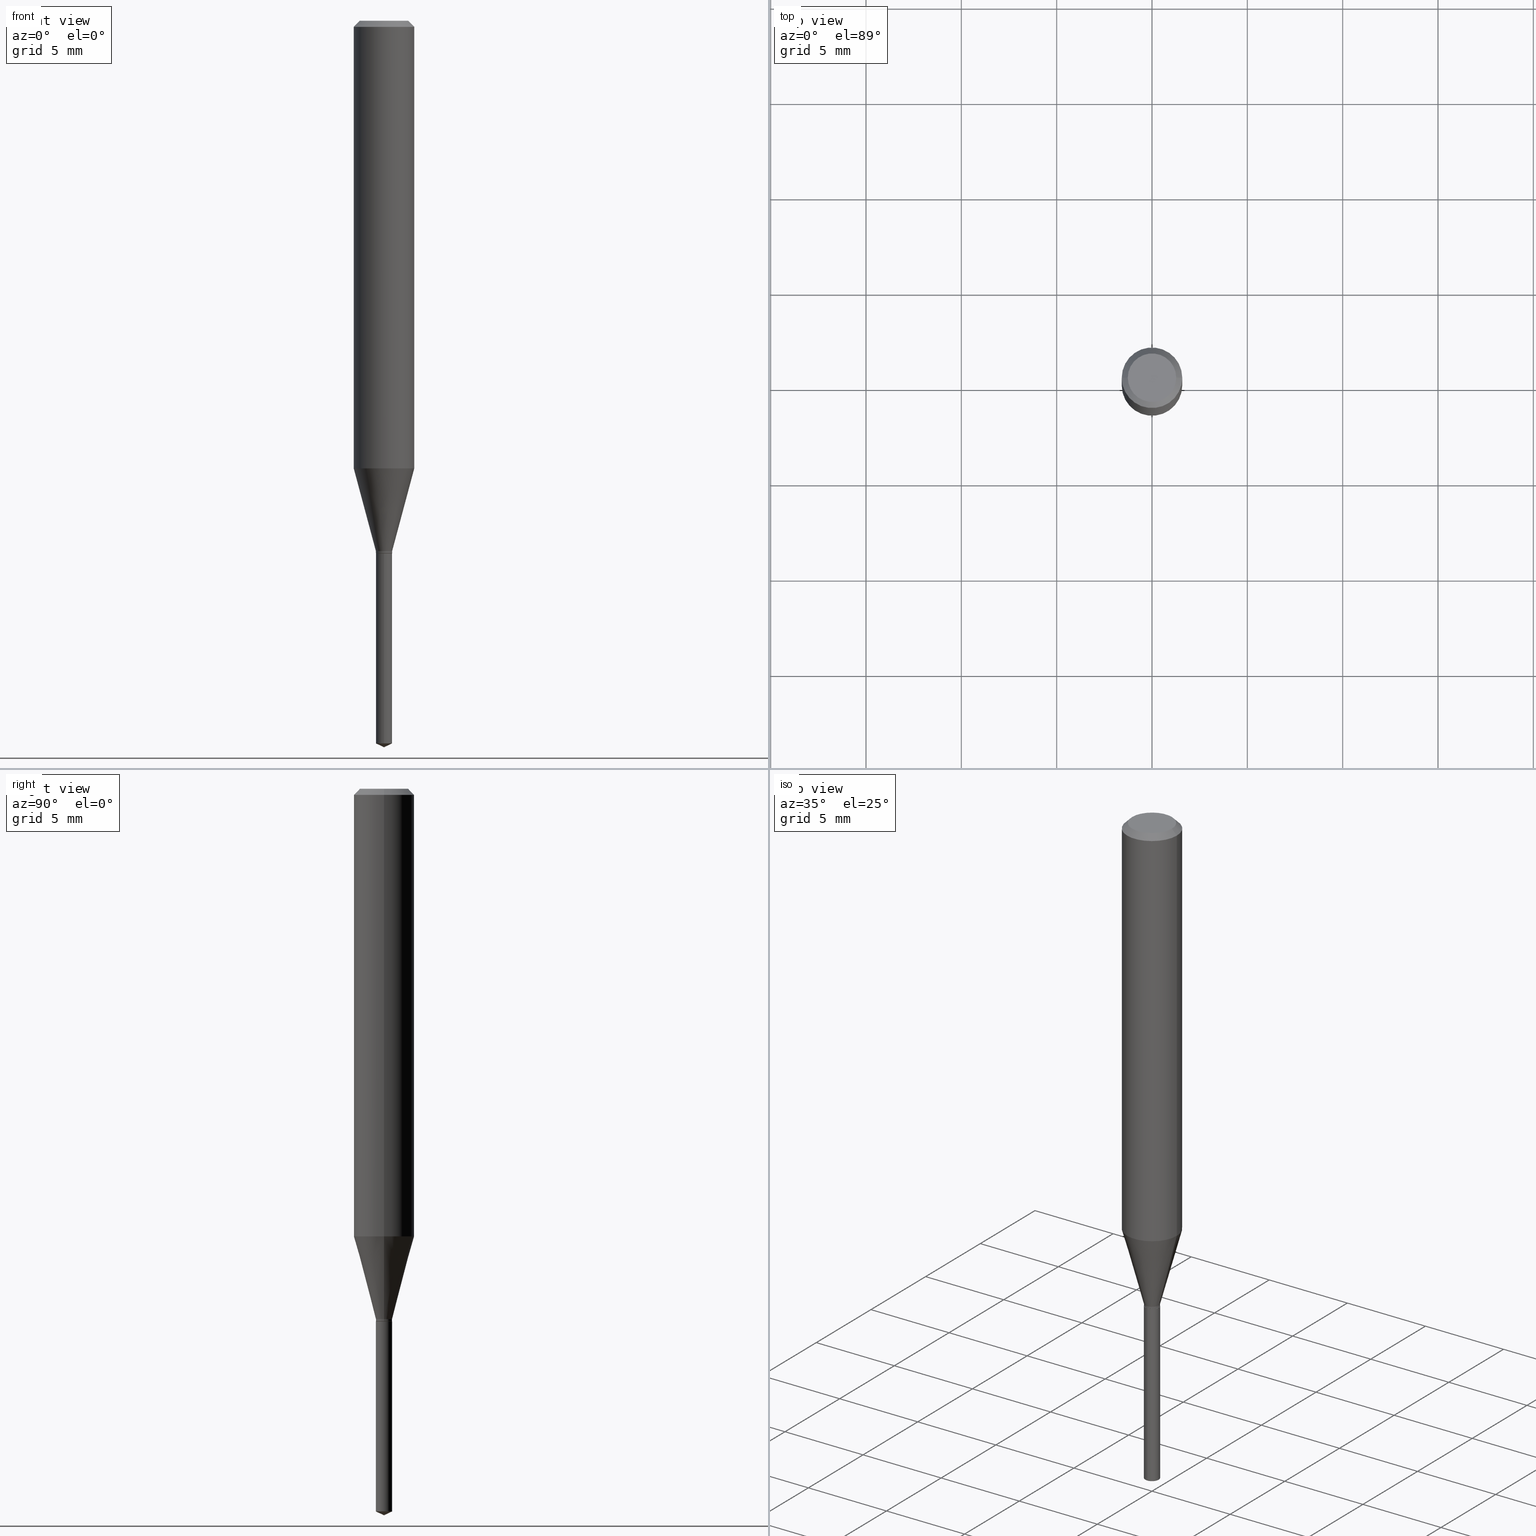
[diagram: canonical four-view strip — front | top / right | iso, engineering-drawing reading convention]
A machine part, canonical four-view strip (front | top / right | iso — engineering-drawing reading convention). The complete STEP part file that produces these views, byte-faithful:
ISO-10303-21;
HEADER;
FILE_DESCRIPTION (( 'STEP AP203' ),
    '1' );
FILE_NAME ('07300.STEP',
    '2024-04-23T20:17:56',
    ( '' ),
    ( '' ),
    'SwSTEP 2.0',
    'SolidWorks 2023',
    '' );
FILE_SCHEMA (( 'CONFIG_CONTROL_DESIGN' ));
ENDSEC;

DATA;
#1 = VERTEX_POINT ( 'NONE', #352 ) ;
#2 = CARTESIAN_POINT ( 'NONE',  ( 0.01674999999999999406, -1.169646248512449299E-16, 8.167596099458190491E-31 ) ) ;
#3 = ORIENTED_EDGE ( 'NONE', *, *, #4, .F. ) ;
#4 = EDGE_CURVE ( 'NONE', #376, #220, #438, .T. ) ;
#5 = CARTESIAN_POINT ( 'NONE',  ( 3.668099535622682715E-29, -5.237370474839449507E-15, -1.500000000000000222 ) ) ;
#6 = ORIENTED_EDGE ( 'NONE', *, *, #448, .T. ) ;
#7 = CYLINDRICAL_SURFACE ( 'NONE', #84, 0.01674999999999999406 ) ;
#8 = CIRCLE ( 'NONE', #423, 0.01674999999999999753 ) ;
#9 = ORIENTED_EDGE ( 'NONE', *, *, #229, .F. ) ;
#10 = CC_DESIGN_APPROVAL ( #482, ( #187 ) ) ;
#11 = CONICAL_SURFACE ( 'NONE', #296, 84.42940631927572781, 1.134464013796322224 ) ;
#12 = CARTESIAN_POINT ( 'NONE',  ( 0.04999999999999999584, -4.077247707424184212E-16, -1.592040838888913461E-18 ) ) ;
#13 = ORIENTED_EDGE ( 'NONE', *, *, #340, .T. ) ;
#14 = CARTESIAN_POINT ( 'NONE',  ( 1.190159082398436835E-16, 0.01674999999999616032, -1.100000000000000089 ) ) ;
#15 = CYLINDRICAL_SURFACE ( 'NONE', #336, 0.06250000000000005551 ) ;
#16 = PLANE ( 'NONE',  #282 ) ;
#17 = CARTESIAN_POINT ( 'NONE',  ( 0.000000000000000000, 0.000000000000000000, 0.000000000000000000 ) ) ;
#18 = CIRCLE ( 'NONE', #490, 0.01675000000000000447 ) ;
#19 = DIRECTION ( 'NONE',  ( -2.445468806185136597E-29, 3.491481338843145583E-15, 1.000000000000000000 ) ) ;
#20 = CARTESIAN_POINT ( 'NONE',  ( -0.01625000000000000402, -3.725166278166443916E-15, -1.100000000000000089 ) ) ;
#21 = ADVANCED_FACE ( 'NONE', ( #207 ), #135, .T. ) ;
#22 = PERSON_AND_ORGANIZATION ( #272, #484 ) ;
#23 = DIRECTION ( 'NONE',  ( -6.982962677686265922E-15, -1.000000000000000000, 0.000000000000000000 ) ) ;
#24 = DIRECTION ( 'NONE',  ( 0.7071067811865173747, -2.468850131081940727E-15, 0.7071067811865776598 ) ) ;
#25 = AXIS2_PLACEMENT_3D ( 'NONE', #52, #245, #92 ) ;
#26 = VECTOR ( 'NONE', #275, 39.37007874015748854 ) ;
#27 = CC_DESIGN_APPROVAL ( #121, ( #266 ) ) ;
#28 = EDGE_CURVE ( 'NONE', #342, #111, #354, .T. ) ;
#29 = FACE_OUTER_BOUND ( 'NONE', #480, .T. ) ;
#30 = ORIENTED_EDGE ( 'NONE', *, *, #472, .F. ) ;
#31 = PERSON_AND_ORGANIZATION_ROLE ( 'classification_officer' ) ;
#32 = CARTESIAN_POINT ( 'NONE',  ( 0.01674999999999999406, -3.940136690884488960E-15, -1.094999999999999973 ) ) ;
#33 = ORIENTED_EDGE ( 'NONE', *, *, #171, .T. ) ;
#34 = ORIENTED_EDGE ( 'NONE', *, *, #356, .T. ) ;
#35 = EDGE_LOOP ( 'NONE', ( #429, #194, #30, #41 ) ) ;
#36 = ADVANCED_FACE ( 'NONE', ( #467 ), #162, .F. ) ;
#37 = CARTESIAN_POINT ( 'NONE',  ( -0.01674999999999999406, 1.190159082398167389E-16, -8.239216276176963934E-31 ) ) ;
#38 = ORIENTED_EDGE ( 'NONE', *, *, #261, .T. ) ;
#39 = DIRECTION ( 'NONE',  ( -2.445399690415121530E-29, 3.491580316559632610E-15, 1.000000000000000000 ) ) ;
#40 = ADVANCED_FACE ( 'NONE', ( #357 ), #328, .T. ) ;
#41 = ORIENTED_EDGE ( 'NONE', *, *, #128, .F. ) ;
#42 = DIRECTION ( 'NONE',  ( -2.445468806185136877E-29, 3.491481338843145188E-15, 1.000000000000000000 ) ) ;
#43 = ORIENTED_EDGE ( 'NONE', *, *, #270, .F. ) ;
#44 = CARTESIAN_POINT ( 'NONE',  ( -0.06250000000000005551, 4.440892098500630106E-16, -3.074334431409318916E-30 ) ) ;
#45 = EDGE_LOOP ( 'NONE', ( #456, #228, #63, #224 ) ) ;
#46 = DIRECTION ( 'NONE',  ( -2.445468806185136597E-29, 3.491481338843145583E-15, 1.000000000000000000 ) ) ;
#47 = AXIS2_PLACEMENT_3D ( 'NONE', #156, #463, #433 ) ;
#48 = VERTEX_POINT ( 'NONE', #58 ) ;
#49 = LINE ( 'NONE', #14, #406 ) ;
#50 = LINE ( 'NONE', #280, #239 ) ;
#51 = CARTESIAN_POINT ( 'NONE',  ( 2.688792952400557567E-29, -3.838883732058038598E-15, -1.099499999999999922 ) ) ;
#52 = CARTESIAN_POINT ( 'NONE',  ( 2.677788342772724596E-29, -3.823172066033244277E-15, -1.094999999999999973 ) ) ;
#53 = DIRECTION ( 'NONE',  ( 1.000000000000000000, -6.982962677686266711E-15, 0.000000000000000000 ) ) ;
#54 = VECTOR ( 'NONE', #223, 39.37007874015748854 ) ;
#55 = CLOSED_SHELL ( 'NONE', ( #326, #97, #373, #82, #36 ) ) ;
#56 = APPROVAL_STATUS ( 'not_yet_approved' ) ;
#57 = DIRECTION ( 'NONE',  ( 2.445399690415121250E-29, -3.491580316559632610E-15, -1.000000000000000000 ) ) ;
#58 = CARTESIAN_POINT ( 'NONE',  ( -0.06250000000000012490, -2.782942708109644843E-15, -0.9242586755537238741 ) ) ;
#59 = EDGE_CURVE ( 'NONE', #158, #379, #267, .T. ) ;
#60 = CYLINDRICAL_SURFACE ( 'NONE', #292, 0.01675000000000000447 ) ;
#61 = AXIS2_PLACEMENT_3D ( 'NONE', #313, #87, #235 ) ;
#62 = DIRECTION ( 'NONE',  ( 1.000000000000000000, -6.982962677686262766E-15, 0.000000000000000000 ) ) ;
#63 = ORIENTED_EDGE ( 'NONE', *, *, #248, .T. ) ;
#64 = PERSON_AND_ORGANIZATION_ROLE ( 'design_supplier' ) ;
#65 = DIRECTION ( 'NONE',  ( 1.000000000000000000, -6.982962677686264344E-15, 0.000000000000000000 ) ) ;
#66 = EDGE_LOOP ( 'NONE', ( #444, #306, #465, #427 ) ) ;
#67 = CLOSED_SHELL ( 'NONE', ( #21, #241, #89, #210, #439, #457, #378, #286, #40, #487, #179, #363 ) ) ;
#68 = CONICAL_SURFACE ( 'NONE', #157, 0.01674999999999999406, 0.2617993877991499629 ) ;
#69 = PRODUCT ( '07300', '07300', '', ( #371 ) ) ;
#70 = EDGE_CURVE ( 'NONE', #113, #376, #140, .T. ) ;
#71 = DIRECTION ( 'NONE',  ( 1.000000000000000000, -6.982962677686261189E-15, 0.000000000000000000 ) ) ;
#72 = ORIENTED_EDGE ( 'NONE', *, *, #28, .F. ) ;
#73 = CYLINDRICAL_SURFACE ( 'NONE', #148, 0.06250000000000005551 ) ;
#74 = CC_DESIGN_DATE_AND_TIME_ASSIGNMENT ( #435, #287, ( #382 ) ) ;
#75 = AXIS2_PLACEMENT_3D ( 'NONE', #404, #78, #269 ) ;
#76 = LOCAL_TIME ( 16, 17, 56.00000000000000000, #279 ) ;
#77 = EDGE_LOOP ( 'NONE', ( #425, #258, #348, #311 ) ) ;
#78 = DIRECTION ( 'NONE',  ( -2.445468806185136597E-29, 3.491481338843145583E-15, 1.000000000000000000 ) ) ;
#79 = ORIENTED_EDGE ( 'NONE', *, *, #128, .T. ) ;
#80 = DIRECTION ( 'NONE',  ( 1.000000000000000000, -6.982962677686266711E-15, 4.876176775795936353E-29 ) ) ;
#81 = ORIENTED_EDGE ( 'NONE', *, *, #59, .F. ) ;
#82 = ADVANCED_FACE ( 'NONE', ( #203 ), #403, .T. ) ;
#83 = CARTESIAN_POINT ( 'NONE',  ( -9.260740279983036507E-28, 1.322265303911854087E-13, 37.87007874015748143 ) ) ;
#84 = AXIS2_PLACEMENT_3D ( 'NONE', #359, #458, #80 ) ;
#85 = DIRECTION ( 'NONE',  ( -6.982962677686265922E-15, -1.000000000000000000, 0.000000000000000000 ) ) ;
#86 = DIRECTION ( 'NONE',  ( -2.445468806185136597E-29, 3.491481338843145583E-15, 1.000000000000000000 ) ) ;
#87 = DIRECTION ( 'NONE',  ( -2.445399690415121530E-29, 3.491580316559632610E-15, 1.000000000000000000 ) ) ;
#88 = DIRECTION ( 'NONE',  ( 2.438088387897960049E-29, -3.491481338843145188E-15, -1.000000000000000000 ) ) ;
#89 = ADVANCED_FACE ( 'NONE', ( #399 ), #15, .T. ) ;
#90 = CARTESIAN_POINT ( 'NONE',  ( 3.056836007731440977E-31, -4.364351673553961068E-17, -0.01250000000000008223 ) ) ;
#91 = APPROVAL_DATE_TIME ( #475, #482 ) ;
#92 = DIRECTION ( 'NONE',  ( 1.000000000000000000, -6.982962677686262766E-15, 0.000000000000000000 ) ) ;
#93 = APPROVAL_PERSON_ORGANIZATION ( #249, #482, #409 ) ;
#94 = DATE_AND_TIME ( #246, #240 ) ;
#95 = APPLICATION_CONTEXT ( 'configuration controlled 3d designs of mechanical parts and assemblies' ) ;
#96 = CARTESIAN_POINT ( 'NONE',  ( -9.260740279983036507E-28, 1.322265303911854087E-13, 37.87007874015748143 ) ) ;
#97 = ADVANCED_FACE ( 'NONE', ( #242 ), #11, .T. ) ;
#98 = DIRECTION ( 'NONE',  ( -2.445468806185136597E-29, 3.491481338843145583E-15, 1.000000000000000000 ) ) ;
#99 = CC_DESIGN_PERSON_AND_ORGANIZATION_ASSIGNMENT ( #216, #64, ( #187 ) ) ;
#100 = PERSON_AND_ORGANIZATION_ROLE ( 'design_owner' ) ;
#101 = DIRECTION ( 'NONE',  ( -1.000000000000000000, 6.982962677686266711E-15, 0.000000000000000000 ) ) ;
#102 = CIRCLE ( 'NONE', #446, 0.04999999999999999584 ) ;
#103 = CALENDAR_DATE ( 2024, 23, 4 ) ;
#104 = DIRECTION ( 'NONE',  ( 1.000000000000000000, -6.982962677686265922E-15, 4.876176775795935793E-29 ) ) ;
#105 = EDGE_CURVE ( 'NONE', #289, #342, #393, .T. ) ;
#106 = ORIENTED_EDGE ( 'NONE', *, *, #70, .T. ) ;
#107 = CONICAL_SURFACE ( 'NONE', #173, 84.42940631927572781, 1.134464013796322224 ) ;
#108 = ORIENTED_EDGE ( 'NONE', *, *, #337, .T. ) ;
#109 = EDGE_CURVE ( 'NONE', #386, #220, #205, .T. ) ;
#110 = DIRECTION ( 'NONE',  ( -2.445468806185136597E-29, 3.491481338843145583E-15, 1.000000000000000000 ) ) ;
#111 = VERTEX_POINT ( 'NONE', #322 ) ;
#112 = CARTESIAN_POINT ( 'NONE',  ( 3.056836007731440977E-31, -4.364351673553961068E-17, -0.01250000000000008223 ) ) ;
#113 = VERTEX_POINT ( 'NONE', #327 ) ;
#114 =( CONVERSION_BASED_UNIT ( 'INCH', #305 ) LENGTH_UNIT ( ) NAMED_UNIT ( #321 ) );
#115 = AXIS2_PLACEMENT_3D ( 'NONE', #316, #422, #62 ) ;
#116 = VERTEX_POINT ( 'NONE', #211 ) ;
#117 = DIRECTION ( 'NONE',  ( 1.000000000000000000, -6.982962677686256455E-15, 0.000000000000000000 ) ) ;
#118 = EDGE_CURVE ( 'NONE', #116, #215, #147, .T. ) ;
#119 = ORIENTED_EDGE ( 'NONE', *, *, #448, .F. ) ;
#120 = DIRECTION ( 'NONE',  ( -2.445468806185136597E-29, 3.491481338843145583E-15, 1.000000000000000000 ) ) ;
#121 = APPROVAL ( #56, 'UNSPECIFIED' ) ;
#122 = ORIENTED_EDGE ( 'NONE', *, *, #155, .T. ) ;
#123 = LINE ( 'NONE', #193, #26 ) ;
#124 = CONICAL_SURFACE ( 'NONE', #449, 0.01674999999999999406, 0.2617993877991499629 ) ;
#125 = CIRCLE ( 'NONE', #197, 0.06250000000000012490 ) ;
#126 = DIRECTION ( 'NONE',  ( -2.445468806185136597E-29, 3.491481338843145583E-15, 1.000000000000000000 ) ) ;
#127 =( GEOMETRIC_REPRESENTATION_CONTEXT ( 3 ) GLOBAL_UNCERTAINTY_ASSIGNED_CONTEXT ( ( #218 ) ) GLOBAL_UNIT_ASSIGNED_CONTEXT ( ( #114, #177, #442 ) ) REPRESENTATION_CONTEXT ( 'NONE', 'WORKASPACE' ) );
#128 = EDGE_CURVE ( 'NONE', #289, #142, #50, .T. ) ;
#129 = FACE_OUTER_BOUND ( 'NONE', #146, .T. ) ;
#130 = DIRECTION ( 'NONE',  ( -0.7071067811865453523, 2.468850131082234184E-15, -0.7071067811865496822 ) ) ;
#131 = PERSON_AND_ORGANIZATION ( #272, #484 ) ;
#132 = DIRECTION ( 'NONE',  ( 1.000000000000000000, -6.982962677686267499E-15, 4.876176775795936353E-29 ) ) ;
#133 = CALENDAR_DATE ( 2024, 23, 4 ) ;
#134 = EDGE_CURVE ( 'NONE', #215, #116, #18, .T. ) ;
#135 = CONICAL_SURFACE ( 'NONE', #414, 0.01625000000000000402, 0.7853981633974056464 ) ;
#136 = DIRECTION ( 'NONE',  ( -2.445468806185136597E-29, 3.491481338843145583E-15, 1.000000000000000000 ) ) ;
#137 = CONICAL_SURFACE ( 'NONE', #47, 0.01625000000000000402, 0.7853981633974056464 ) ;
#138 = APPROVAL_PERSON_ORGANIZATION ( #175, #304, #170 ) ;
#139 = APPLICATION_PROTOCOL_DEFINITION ( 'international standard', 'config_control_design', 1994, #236 ) ;
#140 = LINE ( 'NONE', #209, #349 ) ;
#141 = LINE ( 'NONE', #372, #474 ) ;
#142 = VERTEX_POINT ( 'NONE', #233 ) ;
#143 = APPROVAL_DATE_TIME ( #329, #304 ) ;
#144 = FACE_OUTER_BOUND ( 'NONE', #419, .T. ) ;
#145 = VECTOR ( 'NONE', #479, 39.37007874015748143 ) ;
#146 = EDGE_LOOP ( 'NONE', ( #72, #6, #79, #43 ) ) ;
#147 = CIRCLE ( 'NONE', #232, 0.01675000000000000447 ) ;
#148 = AXIS2_PLACEMENT_3D ( 'NONE', #183, #368, #333 ) ;
#149 = CARTESIAN_POINT ( 'NONE',  ( 2.677788342772724596E-29, -3.823172066033244277E-15, -1.094999999999999973 ) ) ;
#150 = ORIENTED_EDGE ( 'NONE', *, *, #155, .F. ) ;
#151 = LINE ( 'NONE', #32, #54 ) ;
#152 = ORIENTED_EDGE ( 'NONE', *, *, #430, .F. ) ;
#153 = LINE ( 'NONE', #2, #375 ) ;
#154 = EDGE_LOOP ( 'NONE', ( #300, #260, #488, #108 ) ) ;
#155 = EDGE_CURVE ( 'NONE', #189, #1, #367, .T. ) ;
#156 = CARTESIAN_POINT ( 'NONE',  ( 2.690015686803650369E-29, -3.840629472727460101E-15, -1.100000000000000089 ) ) ;
#157 = AXIS2_PLACEMENT_3D ( 'NONE', #149, #186, #302 ) ;
#158 = VERTEX_POINT ( 'NONE', #165 ) ;
#159 = DIRECTION ( 'NONE',  ( -6.982962677686267499E-15, -1.000000000000000000, 3.520397390770395889E-15 ) ) ;
#160 = ORIENTED_EDGE ( 'NONE', *, *, #105, .F. ) ;
#161 = DIRECTION ( 'NONE',  ( -2.445399690415121810E-29, 3.491580316559632610E-15, 1.000000000000000000 ) ) ;
#162 = PLANE ( 'NONE',  #324 ) ;
#163 = DIRECTION ( 'NONE',  ( -1.000000000000000000, 6.982962677686265922E-15, -4.876176775795935793E-29 ) ) ;
#164 = AXIS2_PLACEMENT_3D ( 'NONE', #426, #46, #277 ) ;
#165 = CARTESIAN_POINT ( 'NONE',  ( 0.01674999999999999406, -3.940136690884488960E-15, -1.094999999999999973 ) ) ;
#166 = CALENDAR_DATE ( 2024, 23, 4 ) ;
#167 = DIRECTION ( 'NONE',  ( -2.445468806185136597E-29, 3.491481338843145583E-15, 1.000000000000000000 ) ) ;
#168 = APPROVAL_ROLE ( '' ) ;
#169 = DIRECTION ( 'NONE',  ( -2.445468806185136597E-29, 3.491481338843145583E-15, 1.000000000000000000 ) ) ;
#170 = APPROVAL_ROLE ( '' ) ;
#171 = EDGE_CURVE ( 'NONE', #379, #158, #250, .T. ) ;
#172 = CARTESIAN_POINT ( 'NONE',  ( 2.690015686803650369E-29, -3.840629472727460101E-15, -1.100000000000000089 ) ) ;
#173 = AXIS2_PLACEMENT_3D ( 'NONE', #83, #392, #159 ) ;
#174 = AXIS2_PLACEMENT_3D ( 'NONE', #172, #362, #23 ) ;
#175 = PERSON_AND_ORGANIZATION ( #272, #484 ) ;
#176 = CARTESIAN_POINT ( 'NONE',  ( 2.690015686803650369E-29, -3.840629472727460101E-15, -1.100000000000000089 ) ) ;
#177 =( NAMED_UNIT ( * ) PLANE_ANGLE_UNIT ( ) SI_UNIT ( $, .RADIAN. ) );
#178 = CARTESIAN_POINT ( 'NONE',  ( -1.169646248512180840E-16, -0.01675000000000384515, -1.100000000000000089 ) ) ;
#179 = ADVANCED_FACE ( 'NONE', ( #144 ), #259, .F. ) ;
#180 = ORIENTED_EDGE ( 'NONE', *, *, #261, .F. ) ;
#181 = AXIS2_PLACEMENT_3D ( 'NONE', #299, #288, #104 ) ;
#182 = EDGE_CURVE ( 'NONE', #1, #189, #185, .T. ) ;
#183 = CARTESIAN_POINT ( 'NONE',  ( 0.000000000000000000, 0.000000000000000000, 0.000000000000000000 ) ) ;
#184 = ORIENTED_EDGE ( 'NONE', *, *, #418, .T. ) ;
#185 = CIRCLE ( 'NONE', #307, 0.01675000000000000447 ) ;
#186 = DIRECTION ( 'NONE',  ( -2.445468806185136597E-29, 3.491481338843145583E-15, 1.000000000000000000 ) ) ;
#187 = PRODUCT_DEFINITION_FORMATION_WITH_SPECIFIED_SOURCE ( 'ANY', '', #69, .NOT_KNOWN. ) ;
#188 = PRODUCT_DEFINITION_SHAPE ( 'NONE', 'NONE',  #382 ) ;
#189 = VERTEX_POINT ( 'NONE', #262 ) ;
#190 = DIRECTION ( 'NONE',  ( -2.445468806185136877E-29, 3.491481338843145188E-15, 1.000000000000000000 ) ) ;
#191 = ORIENTED_EDGE ( 'NONE', *, *, #256, .F. ) ;
#192 = EDGE_CURVE ( 'NONE', #116, #1, #217, .T. ) ;
#193 = CARTESIAN_POINT ( 'NONE',  ( -0.01674999999999999406, -3.704156157793427982E-15, -1.094999999999999973 ) ) ;
#194 = ORIENTED_EDGE ( 'NONE', *, *, #28, .T. ) ;
#195 = AXIS2_PLACEMENT_3D ( 'NONE', #90, #469, #237 ) ;
#196 = CARTESIAN_POINT ( 'NONE',  ( 1.946643104841063088E-47, -2.779290439833033990E-33, -7.960204194457798443E-19 ) ) ;
#197 = AXIS2_PLACEMENT_3D ( 'NONE', #345, #110, #65 ) ;
#198 = APPROVAL_PERSON_ORGANIZATION ( #131, #121, #168 ) ;
#199 = VECTOR ( 'NONE', #436, 39.37007874015748143 ) ;
#200 = ORIENTED_EDGE ( 'NONE', *, *, #70, .F. ) ;
#201 = CARTESIAN_POINT ( 'NONE',  ( 0.06250000000000000000, -4.800786840909312308E-16, -0.01250000000000008223 ) ) ;
#202 = EDGE_CURVE ( 'NONE', #111, #379, #489, .T. ) ;
#203 = FACE_OUTER_BOUND ( 'NONE', #346, .T. ) ;
#204 = CARTESIAN_POINT ( 'NONE',  ( -0.04999999999999999584, 3.709698922520826725E-16, -1.592040838894077649E-18 ) ) ;
#205 = LINE ( 'NONE', #432, #366 ) ;
#206 = AXIS2_PLACEMENT_3D ( 'NONE', #361, #238, #332 ) ;
#207 = FACE_OUTER_BOUND ( 'NONE', #35, .T. ) ;
#208 = PERSON_AND_ORGANIZATION ( #272, #484 ) ;
#209 = CARTESIAN_POINT ( 'NONE',  ( 0.06250000000000005551, -4.364351673553921131E-16, 3.047610484872463023E-30 ) ) ;
#210 = ADVANCED_FACE ( 'NONE', ( #293 ), #68, .T. ) ;
#211 = CARTESIAN_POINT ( 'NONE',  ( -1.169646248512084451E-16, -0.01675000000000521211, -1.492189346725903976 ) ) ;
#212 = CARTESIAN_POINT ( 'NONE',  ( 0.06250000000000000000, -4.724246415962602840E-16, -0.01250000000000008223 ) ) ;
#213 = EDGE_CURVE ( 'NONE', #417, #376, #443, .T. ) ;
#214 = DIRECTION ( 'NONE',  ( 0.7071067811865453523, -7.319954787623248157E-15, -0.7071067811865496822 ) ) ;
#215 = VERTEX_POINT ( 'NONE', #343 ) ;
#216 = PERSON_AND_ORGANIZATION ( #272, #484 ) ;
#217 = LINE ( 'NONE', #178, #145 ) ;
#218 = UNCERTAINTY_MEASURE_WITH_UNIT (LENGTH_MEASURE( 1.000000000000000082E-05 ), #114, 'distance_accuracy_value', 'NONE');
#219 = MANIFOLD_SOLID_BREP ( 'Body-Move/Copy2[1]', #55 ) ;
#220 = VERTEX_POINT ( 'NONE', #331 ) ;
#221 = CARTESIAN_POINT ( 'NONE',  ( 3.056836007731440977E-31, -4.364351673553961068E-17, -0.01250000000000008223 ) ) ;
#222 = EDGE_LOOP ( 'NONE', ( #271, #374, #485, #335 ) ) ;
#223 = DIRECTION ( 'NONE',  ( 0.2588190451025212391, 1.565188264969622362E-15, 0.9659258262890679791 ) ) ;
#224 = ORIENTED_EDGE ( 'NONE', *, *, #171, .F. ) ;
#225 = CARTESIAN_POINT ( 'NONE',  ( -0.01625000000000000402, -3.722517050992332715E-15, -1.100000000000000089 ) ) ;
#226 = ORIENTED_EDGE ( 'NONE', *, *, #192, .T. ) ;
#227 = DIRECTION ( 'NONE',  ( 1.000000000000000000, -6.982962677686261189E-15, 0.000000000000000000 ) ) ;
#228 = ORIENTED_EDGE ( 'NONE', *, *, #270, .T. ) ;
#229 = EDGE_CURVE ( 'NONE', #297, #215, #255, .T. ) ;
#230 = CARTESIAN_POINT ( 'NONE',  ( 2.690015686803650369E-29, -3.840629472727460101E-15, -1.100000000000000089 ) ) ;
#231 = AXIS2_PLACEMENT_3D ( 'NONE', #466, #120, #347 ) ;
#232 = AXIS2_PLACEMENT_3D ( 'NONE', #394, #365, #470 ) ;
#233 = CARTESIAN_POINT ( 'NONE',  ( 0.01674999999999999753, -3.955848356909283281E-15, -1.099499999999999922 ) ) ;
#234 = FACE_OUTER_BOUND ( 'NONE', #45, .T. ) ;
#235 = DIRECTION ( 'NONE',  ( -6.982962677686265922E-15, -1.000000000000000000, 0.000000000000000000 ) ) ;
#236 = APPLICATION_CONTEXT ( 'configuration controlled 3d designs of mechanical parts and assemblies' ) ;
#237 = DIRECTION ( 'NONE',  ( -1.000000000000000000, 6.982962677686266711E-15, 0.000000000000000000 ) ) ;
#238 = DIRECTION ( 'NONE',  ( 0.000000000000000000, 0.000000000000000000, 1.000000000000000000 ) ) ;
#239 = VECTOR ( 'NONE', #24, 39.37007874015748143 ) ;
#240 = LOCAL_TIME ( 16, 17, 56.00000000000000000, #320 ) ;
#241 = ADVANCED_FACE ( 'NONE', ( #370 ), #298, .T. ) ;
#242 = FACE_OUTER_BOUND ( 'NONE', #264, .T. ) ;
#243 = AXIS2_PLACEMENT_3D ( 'NONE', #473, #136, #53 ) ;
#244 = APPROVAL_DATE_TIME ( #94, #121 ) ;
#245 = DIRECTION ( 'NONE',  ( -2.445468806185136597E-29, 3.491481338843145583E-15, 1.000000000000000000 ) ) ;
#246 = CALENDAR_DATE ( 2024, 23, 4 ) ;
#247 = DIRECTION ( 'NONE',  ( 1.000000000000000000, -6.982962677686266711E-15, 0.000000000000000000 ) ) ;
#248 = EDGE_CURVE ( 'NONE', #142, #158, #153, .T. ) ;
#249 = PERSON_AND_ORGANIZATION ( #272, #484 ) ;
#250 = CIRCLE ( 'NONE', #115, 0.01674999999999999406 ) ;
#251 = CARTESIAN_POINT ( 'NONE',  ( 2.688792952400557567E-29, -3.838883732058038598E-15, -1.099499999999999922 ) ) ;
#252 = ORIENTED_EDGE ( 'NONE', *, *, #182, .T. ) ;
#253 = PERSON_AND_ORGANIZATION_ROLE ( 'creator' ) ;
#254 = CC_DESIGN_PERSON_AND_ORGANIZATION_ASSIGNMENT ( #478, #253, ( #187 ) ) ;
#255 = LINE ( 'NONE', #481, #325 ) ;
#256 = EDGE_CURVE ( 'NONE', #48, #113, #125, .T. ) ;
#257 = CIRCLE ( 'NONE', #341, 0.06250000000000000000 ) ;
#258 = ORIENTED_EDGE ( 'NONE', *, *, #430, .T. ) ;
#259 = PLANE ( 'NONE',  #181 ) ;
#260 = ORIENTED_EDGE ( 'NONE', *, *, #464, .F. ) ;
#261 = EDGE_CURVE ( 'NONE', #297, #116, #141, .T. ) ;
#262 = CARTESIAN_POINT ( 'NONE',  ( 1.190159082398533470E-16, 0.01674999999999616379, -1.100000000000000089 ) ) ;
#263 = ADVANCED_BREP_SHAPE_REPRESENTATION ( '07300', ( #219, #380, #206 ), #127 ) ;
#264 = EDGE_LOOP ( 'NONE', ( #180, #424, #303 ) ) ;
#265 = AXIS2_PLACEMENT_3D ( 'NONE', #221, #411, #101 ) ;
#266 = SECURITY_CLASSIFICATION ( '', '', #405 ) ;
#267 = CIRCLE ( 'NONE', #25, 0.01674999999999999406 ) ;
#268 = ORIENTED_EDGE ( 'NONE', *, *, #202, .T. ) ;
#269 = DIRECTION ( 'NONE',  ( 1.000000000000000000, -6.982962677686265922E-15, 4.875957971899673662E-29 ) ) ;
#270 = EDGE_CURVE ( 'NONE', #111, #142, #8, .T. ) ;
#271 = ORIENTED_EDGE ( 'NONE', *, *, #340, .F. ) ;
#272 = PERSON ( 'UNSPECIFIED', 'UNSPECIFIED', 'UNSPECIFIED', ('UNSPECIFIED'), ('UNSPECIFIED'), ('UNSPECIFIED') ) ;
#273 = CYLINDRICAL_SURFACE ( 'NONE', #164, 0.01674999999999999406 ) ;
#274 = EDGE_LOOP ( 'NONE', ( #9, #38, #384 ) ) ;
#275 = DIRECTION ( 'NONE',  ( -0.2588190451025212391, 5.211531920934549464E-15, 0.9659258262890679791 ) ) ;
#276 = DIRECTION ( 'NONE',  ( 1.000000000000000000, -6.982962677686256455E-15, 0.000000000000000000 ) ) ;
#277 = DIRECTION ( 'NONE',  ( 1.000000000000000000, -6.982962677686266711E-15, 4.876176775795936353E-29 ) ) ;
#278 = DIRECTION ( 'NONE',  ( -2.445399690415121530E-29, 3.491580316559632610E-15, 1.000000000000000000 ) ) ;
#279 = COORDINATED_UNIVERSAL_TIME_OFFSET ( 5, 0, .BEHIND. ) ;
#280 = CARTESIAN_POINT ( 'NONE',  ( 0.01625000000000000402, -3.954102616239861778E-15, -1.100000000000000089 ) ) ;
#281 = COORDINATED_UNIVERSAL_TIME_OFFSET ( 5, 0, .BEHIND. ) ;
#282 = AXIS2_PLACEMENT_3D ( 'NONE', #196, #88, #163 ) ;
#283 = DIRECTION ( 'NONE',  ( 6.982962677686265922E-15, 1.000000000000000000, -3.491580316559632610E-15 ) ) ;
#284 = SHAPE_DEFINITION_REPRESENTATION ( #188, #263 ) ;
#285 = DIRECTION ( 'NONE',  ( -2.445399690415121530E-29, 3.491580316559632610E-15, 1.000000000000000000 ) ) ;
#286 = ADVANCED_FACE ( 'NONE', ( #29 ), #73, .T. ) ;
#287 = DATE_TIME_ROLE ( 'creation_date' ) ;
#288 = DIRECTION ( 'NONE',  ( -2.438088387897960049E-29, 3.491481338843145188E-15, 1.000000000000000000 ) ) ;
#289 = VERTEX_POINT ( 'NONE', #381 ) ;
#290 = PRODUCT_RELATED_PRODUCT_CATEGORY ( 'detail', '', ( #69 ) ) ;
#291 = PERSON_AND_ORGANIZATION_ROLE ( 'creator' ) ;
#292 = AXIS2_PLACEMENT_3D ( 'NONE', #408, #385, #441 ) ;
#293 = FACE_OUTER_BOUND ( 'NONE', #77, .T. ) ;
#294 = LOCAL_TIME ( 16, 17, 56.00000000000000000, #445 ) ;
#295 = ORIENTED_EDGE ( 'NONE', *, *, #356, .F. ) ;
#296 = AXIS2_PLACEMENT_3D ( 'NONE', #96, #278, #318 ) ;
#297 = VERTEX_POINT ( 'NONE', #5 ) ;
#298 = CONICAL_SURFACE ( 'NONE', #265, 0.06250000000000000000, 0.7853981633974452814 ) ;
#299 = CARTESIAN_POINT ( 'NONE',  ( 2.690015686803650369E-29, -3.840629472727460101E-15, -1.100000000000000089 ) ) ;
#300 = ORIENTED_EDGE ( 'NONE', *, *, #213, .F. ) ;
#301 = EDGE_CURVE ( 'NONE', #158, #113, #151, .T. ) ;
#302 = DIRECTION ( 'NONE',  ( 1.000000000000000000, -6.982962677686262766E-15, 0.000000000000000000 ) ) ;
#303 = ORIENTED_EDGE ( 'NONE', *, *, #118, .F. ) ;
#304 = APPROVAL ( #364, 'UNSPECIFIED' ) ;
#305 = LENGTH_MEASURE_WITH_UNIT ( LENGTH_MEASURE( 0.02539999999999999897 ), #397 );
#306 = ORIENTED_EDGE ( 'NONE', *, *, #410, .T. ) ;
#307 = AXIS2_PLACEMENT_3D ( 'NONE', #176, #39, #339 ) ;
#308 = FACE_OUTER_BOUND ( 'NONE', #274, .T. ) ;
#309 = EDGE_LOOP ( 'NONE', ( #152, #33, #390, #191 ) ) ;
#310 = CARTESIAN_POINT ( 'NONE',  ( 2.677788342772724596E-29, -3.823172066033244277E-15, -1.094999999999999973 ) ) ;
#311 = ORIENTED_EDGE ( 'NONE', *, *, #301, .F. ) ;
#312 = CARTESIAN_POINT ( 'NONE',  ( -0.01674999999999999406, -3.712011990805825142E-15, -1.094999999999999973 ) ) ;
#313 = CARTESIAN_POINT ( 'NONE',  ( 2.690015686803650369E-29, -3.840629472727460101E-15, -1.100000000000000089 ) ) ;
#314 = CIRCLE ( 'NONE', #75, 0.04999999999999999584 ) ;
#315 = DIRECTION ( 'NONE',  ( -2.445468806185136877E-29, 3.491481338843145188E-15, 1.000000000000000000 ) ) ;
#316 = CARTESIAN_POINT ( 'NONE',  ( 2.677788342772724596E-29, -3.823172066033244277E-15, -1.094999999999999973 ) ) ;
#317 = DATE_TIME_ROLE ( 'classification_date' ) ;
#318 = DIRECTION ( 'NONE',  ( -6.982962677686267499E-15, -1.000000000000000000, 3.520397390770395889E-15 ) ) ;
#319 = CC_DESIGN_DATE_AND_TIME_ASSIGNMENT ( #437, #317, ( #266 ) ) ;
#320 = COORDINATED_UNIVERSAL_TIME_OFFSET ( 5, 0, .BEHIND. ) ;
#321 = DIMENSIONAL_EXPONENTS ( 1.000000000000000000, 0.000000000000000000, 0.000000000000000000, 0.000000000000000000, 0.000000000000000000, 0.000000000000000000, 0.000000000000000000 ) ;
#322 = CARTESIAN_POINT ( 'NONE',  ( -0.01674999999999999753, -3.712011990805825142E-15, -1.099499999999999922 ) ) ;
#323 = APPLICATION_PROTOCOL_DEFINITION ( 'international standard', 'config_control_design', 1994, #95 ) ;
#324 = AXIS2_PLACEMENT_3D ( 'NONE', #401, #57, #283 ) ;
#325 = VECTOR ( 'NONE', #447, 39.37007874015748143 ) ;
#326 = ADVANCED_FACE ( 'NONE', ( #455 ), #60, .T. ) ;
#327 = CARTESIAN_POINT ( 'NONE',  ( 0.06250000000000012490, -3.663467085315100312E-15, -0.9242586755537238741 ) ) ;
#328 = CONICAL_SURFACE ( 'NONE', #195, 0.06250000000000000000, 0.7853981633974452814 ) ;
#329 = DATE_AND_TIME ( #133, #76 ) ;
#330 = CC_DESIGN_PERSON_AND_ORGANIZATION_ASSIGNMENT ( #402, #100, ( #69 ) ) ;
#331 = CARTESIAN_POINT ( 'NONE',  ( -0.06250000000000000000, -1.191248507497560105E-15, -0.01250000000000008223 ) ) ;
#332 = DIRECTION ( 'NONE',  ( 1.000000000000000000, 0.000000000000000000, 0.000000000000000000 ) ) ;
#333 = DIRECTION ( 'NONE',  ( 1.000000000000000000, -6.982962677686267499E-15, 4.876176775795936353E-29 ) ) ;
#334 = CIRCLE ( 'NONE', #460, 0.01674999999999999753 ) ;
#335 = ORIENTED_EDGE ( 'NONE', *, *, #109, .F. ) ;
#336 = AXIS2_PLACEMENT_3D ( 'NONE', #17, #169, #132 ) ;
#337 = EDGE_CURVE ( 'NONE', #220, #376, #257, .T. ) ;
#338 = ORIENTED_EDGE ( 'NONE', *, *, #464, .T. ) ;
#339 = DIRECTION ( 'NONE',  ( -6.982962677686265922E-15, -1.000000000000000000, 0.000000000000000000 ) ) ;
#340 = EDGE_CURVE ( 'NONE', #417, #386, #314, .T. ) ;
#341 = AXIS2_PLACEMENT_3D ( 'NONE', #112, #98, #247 ) ;
#342 = VERTEX_POINT ( 'NONE', #225 ) ;
#343 = CARTESIAN_POINT ( 'NONE',  ( 1.190159082398532484E-16, 0.01674999999999478989, -1.492189346725903976 ) ) ;
#344 = ORIENTED_EDGE ( 'NONE', *, *, #337, .F. ) ;
#345 = CARTESIAN_POINT ( 'NONE',  ( 2.260245759912620669E-29, -3.227031917959708248E-15, -0.9242586755537238741 ) ) ;
#346 = EDGE_LOOP ( 'NONE', ( #412, #421, #226, #150 ) ) ;
#347 = DIRECTION ( 'NONE',  ( 1.000000000000000000, -6.982962677686264344E-15, 0.000000000000000000 ) ) ;
#348 = ORIENTED_EDGE ( 'NONE', *, *, #418, .F. ) ;
#349 = VECTOR ( 'NONE', #396, 39.37007874015748143 ) ;
#350 = CIRCLE ( 'NONE', #231, 0.06250000000000012490 ) ;
#351 = CC_DESIGN_APPROVAL ( #304, ( #382 ) ) ;
#352 = CARTESIAN_POINT ( 'NONE',  ( -1.169646248512180840E-16, -0.01675000000000384515, -1.100000000000000089 ) ) ;
#353 = LINE ( 'NONE', #44, #391 ) ;
#354 = LINE ( 'NONE', #20, #199 ) ;
#355 = DIRECTION ( 'NONE',  ( -2.445468806185136597E-29, 3.491481338843145583E-15, 1.000000000000000000 ) ) ;
#356 = EDGE_CURVE ( 'NONE', #48, #220, #353, .T. ) ;
#357 = FACE_OUTER_BOUND ( 'NONE', #154, .T. ) ;
#358 = VECTOR ( 'NONE', #214, 39.37007874015748143 ) ;
#359 = CARTESIAN_POINT ( 'NONE',  ( 0.000000000000000000, 0.000000000000000000, 0.000000000000000000 ) ) ;
#360 = CARTESIAN_POINT ( 'NONE',  ( 2.690015686803650369E-29, -3.840629472727460101E-15, -1.100000000000000089 ) ) ;
#361 = CARTESIAN_POINT ( 'NONE',  ( 0.000000000000000000, 0.000000000000000000, 0.000000000000000000 ) ) ;
#362 = DIRECTION ( 'NONE',  ( -2.445399690415121530E-29, 3.491580316559632610E-15, 1.000000000000000000 ) ) ;
#363 = ADVANCED_FACE ( 'NONE', ( #129 ), #137, .T. ) ;
#364 = APPROVAL_STATUS ( 'not_yet_approved' ) ;
#365 = DIRECTION ( 'NONE',  ( -2.445399690415121530E-29, 3.491580316559632610E-15, 1.000000000000000000 ) ) ;
#366 = VECTOR ( 'NONE', #130, 39.37007874015748143 ) ;
#367 = CIRCLE ( 'NONE', #61, 0.01675000000000000447 ) ;
#368 = DIRECTION ( 'NONE',  ( -2.445468806185136597E-29, 3.491481338843145583E-15, 1.000000000000000000 ) ) ;
#369 = APPROVAL_STATUS ( 'not_yet_approved' ) ;
#370 = FACE_OUTER_BOUND ( 'NONE', #222, .T. ) ;
#371 = MECHANICAL_CONTEXT ( 'NONE', #95, 'mechanical' ) ;
#372 = CARTESIAN_POINT ( 'NONE',  ( 3.668099535622682155E-29, -5.237370474839448718E-15, -1.500000000000000222 ) ) ;
#373 = ADVANCED_FACE ( 'NONE', ( #308 ), #107, .T. ) ;
#374 = ORIENTED_EDGE ( 'NONE', *, *, #213, .T. ) ;
#375 = VECTOR ( 'NONE', #190, 39.37007874015748143 ) ;
#376 = VERTEX_POINT ( 'NONE', #201 ) ;
#377 = ORIENTED_EDGE ( 'NONE', *, *, #248, .F. ) ;
#378 = ADVANCED_FACE ( 'NONE', ( #387 ), #124, .T. ) ;
#379 = VERTEX_POINT ( 'NONE', #312 ) ;
#380 = MANIFOLD_SOLID_BREP ( 'Body-Move/Copy2[2]', #67 ) ;
#381 = CARTESIAN_POINT ( 'NONE',  ( 0.01625000000000000402, -3.954102616239861778E-15, -1.100000000000000089 ) ) ;
#382 = PRODUCT_DEFINITION ( 'UNKNOWN', '', #187, #416 ) ;
#383 = CIRCLE ( 'NONE', #483, 0.01625000000000000402 ) ;
#384 = ORIENTED_EDGE ( 'NONE', *, *, #134, .F. ) ;
#385 = DIRECTION ( 'NONE',  ( -2.445399690415121530E-29, 3.491580316559632610E-15, 1.000000000000000000 ) ) ;
#386 = VERTEX_POINT ( 'NONE', #204 ) ;
#387 = FACE_OUTER_BOUND ( 'NONE', #309, .T. ) ;
#388 = ORIENTED_EDGE ( 'NONE', *, *, #256, .T. ) ;
#389 = FACE_OUTER_BOUND ( 'NONE', #454, .T. ) ;
#390 = ORIENTED_EDGE ( 'NONE', *, *, #301, .T. ) ;
#391 = VECTOR ( 'NONE', #315, 39.37007874015748143 ) ;
#392 = DIRECTION ( 'NONE',  ( -2.445399690415121530E-29, 3.491580316559632610E-15, 1.000000000000000000 ) ) ;
#393 = CIRCLE ( 'NONE', #452, 0.01625000000000000402 ) ;
#394 = CARTESIAN_POINT ( 'NONE',  ( 3.649075393871284375E-29, -5.209990076120007424E-15, -1.492189346725903976 ) ) ;
#395 = CARTESIAN_POINT ( 'NONE',  ( 3.893286209682126177E-47, -5.558580879666067980E-33, -1.592040838891559689E-18 ) ) ;
#396 = DIRECTION ( 'NONE',  ( -2.445468806185136877E-29, 3.491481338843145188E-15, 1.000000000000000000 ) ) ;
#397 =( LENGTH_UNIT ( ) NAMED_UNIT ( * ) SI_UNIT ( $, .METRE. ) );
#398 = CC_DESIGN_PERSON_AND_ORGANIZATION_ASSIGNMENT ( #208, #291, ( #382 ) ) ;
#399 = FACE_OUTER_BOUND ( 'NONE', #459, .T. ) ;
#400 = COORDINATED_UNIVERSAL_TIME_OFFSET ( 5, 0, .BEHIND. ) ;
#401 = CARTESIAN_POINT ( 'NONE',  ( 2.690015686803650369E-29, -3.840629472727460101E-15, -1.100000000000000089 ) ) ;
#402 = PERSON_AND_ORGANIZATION ( #272, #484 ) ;
#403 = CYLINDRICAL_SURFACE ( 'NONE', #174, 0.01675000000000000447 ) ;
#404 = CARTESIAN_POINT ( 'NONE',  ( 3.893286209682126177E-47, -5.558580879666067980E-33, -1.592040838891559689E-18 ) ) ;
#405 = SECURITY_CLASSIFICATION_LEVEL ( 'unclassified' ) ;
#406 = VECTOR ( 'NONE', #161, 39.37007874015748143 ) ;
#407 = CC_DESIGN_SECURITY_CLASSIFICATION ( #266, ( #187 ) ) ;
#408 = CARTESIAN_POINT ( 'NONE',  ( 2.690015686803650369E-29, -3.840629472727460101E-15, -1.100000000000000089 ) ) ;
#409 = APPROVAL_ROLE ( '' ) ;
#410 = EDGE_CURVE ( 'NONE', #215, #189, #49, .T. ) ;
#411 = DIRECTION ( 'NONE',  ( 2.445468806185136597E-29, -3.491481338843145583E-15, -1.000000000000000000 ) ) ;
#412 = ORIENTED_EDGE ( 'NONE', *, *, #410, .F. ) ;
#413 = CC_DESIGN_PERSON_AND_ORGANIZATION_ASSIGNMENT ( #22, #31, ( #266 ) ) ;
#414 = AXIS2_PLACEMENT_3D ( 'NONE', #360, #167, #434 ) ;
#415 = VECTOR ( 'NONE', #42, 39.37007874015748143 ) ;
#416 = DESIGN_CONTEXT ( 'detailed design', #236, 'design' ) ;
#417 = VERTEX_POINT ( 'NONE', #12 ) ;
#418 = EDGE_CURVE ( 'NONE', #113, #48, #350, .T. ) ;
#419 = EDGE_LOOP ( 'NONE', ( #160, #119 ) ) ;
#420 = DIRECTION ( 'NONE',  ( -2.445468806185136597E-29, 3.491481338843145583E-15, 1.000000000000000000 ) ) ;
#421 = ORIENTED_EDGE ( 'NONE', *, *, #134, .T. ) ;
#422 = DIRECTION ( 'NONE',  ( -2.445468806185136597E-29, 3.491481338843145583E-15, 1.000000000000000000 ) ) ;
#423 = AXIS2_PLACEMENT_3D ( 'NONE', #251, #420, #71 ) ;
#424 = ORIENTED_EDGE ( 'NONE', *, *, #229, .T. ) ;
#425 = ORIENTED_EDGE ( 'NONE', *, *, #59, .T. ) ;
#426 = CARTESIAN_POINT ( 'NONE',  ( 0.000000000000000000, 0.000000000000000000, 0.000000000000000000 ) ) ;
#427 = ORIENTED_EDGE ( 'NONE', *, *, #192, .F. ) ;
#428 = DIRECTION ( 'NONE',  ( 1.000000000000000000, -6.982962677686265922E-15, 4.875957971899673662E-29 ) ) ;
#429 = ORIENTED_EDGE ( 'NONE', *, *, #105, .T. ) ;
#430 = EDGE_CURVE ( 'NONE', #379, #48, #123, .T. ) ;
#431 = FACE_OUTER_BOUND ( 'NONE', #462, .T. ) ;
#432 = CARTESIAN_POINT ( 'NONE',  ( -0.06250000000000000000, 3.927916506198521080E-16, -0.01250000000000008223 ) ) ;
#433 = DIRECTION ( 'NONE',  ( 1.000000000000000000, -6.982962677686256455E-15, 0.000000000000000000 ) ) ;
#434 = DIRECTION ( 'NONE',  ( 1.000000000000000000, -6.982962677686256455E-15, 0.000000000000000000 ) ) ;
#435 = DATE_AND_TIME ( #471, #476 ) ;
#436 = DIRECTION ( 'NONE',  ( -0.7071067811865173747, 7.493145998870245297E-15, 0.7071067811865776598 ) ) ;
#437 = DATE_AND_TIME ( #166, #450 ) ;
#438 = CIRCLE ( 'NONE', #243, 0.06250000000000000000 ) ;
#439 = ADVANCED_FACE ( 'NONE', ( #431 ), #7, .T. ) ;
#440 = CARTESIAN_POINT ( 'NONE',  ( 2.690015686803650369E-29, -3.840629472727460101E-15, -1.100000000000000089 ) ) ;
#441 = DIRECTION ( 'NONE',  ( -6.982962677686265922E-15, -1.000000000000000000, 0.000000000000000000 ) ) ;
#442 =( NAMED_UNIT ( * ) SI_UNIT ( $, .STERADIAN. ) SOLID_ANGLE_UNIT ( ) );
#443 = LINE ( 'NONE', #212, #358 ) ;
#444 = ORIENTED_EDGE ( 'NONE', *, *, #118, .T. ) ;
#445 = COORDINATED_UNIVERSAL_TIME_OFFSET ( 5, 0, .BEHIND. ) ;
#446 = AXIS2_PLACEMENT_3D ( 'NONE', #395, #19, #428 ) ;
#447 = DIRECTION ( 'NONE',  ( 6.439704144417047708E-15, 0.9063077870366548217, 0.4226182617406890052 ) ) ;
#448 = EDGE_CURVE ( 'NONE', #342, #289, #383, .T. ) ;
#449 = AXIS2_PLACEMENT_3D ( 'NONE', #310, #461, #468 ) ;
#450 = LOCAL_TIME ( 16, 17, 56.00000000000000000, #400 ) ;
#451 = ORIENTED_EDGE ( 'NONE', *, *, #472, .T. ) ;
#452 = AXIS2_PLACEMENT_3D ( 'NONE', #440, #126, #276 ) ;
#453 = DIRECTION ( 'NONE',  ( -6.328713451373393044E-15, -0.9063077870366519351, 0.4226182617406953335 ) ) ;
#454 = EDGE_LOOP ( 'NONE', ( #338, #13 ) ) ;
#455 = FACE_OUTER_BOUND ( 'NONE', #66, .T. ) ;
#456 = ORIENTED_EDGE ( 'NONE', *, *, #202, .F. ) ;
#457 = ADVANCED_FACE ( 'NONE', ( #234 ), #273, .T. ) ;
#458 = DIRECTION ( 'NONE',  ( -2.445468806185136597E-29, 3.491481338843145583E-15, 1.000000000000000000 ) ) ;
#459 = EDGE_LOOP ( 'NONE', ( #184, #34, #3, #200 ) ) ;
#460 = AXIS2_PLACEMENT_3D ( 'NONE', #51, #355, #227 ) ;
#461 = DIRECTION ( 'NONE',  ( -2.445468806185136597E-29, 3.491481338843145583E-15, 1.000000000000000000 ) ) ;
#462 = EDGE_LOOP ( 'NONE', ( #451, #268, #81, #377 ) ) ;
#463 = DIRECTION ( 'NONE',  ( -2.445468806185136597E-29, 3.491481338843145583E-15, 1.000000000000000000 ) ) ;
#464 = EDGE_CURVE ( 'NONE', #386, #417, #102, .T. ) ;
#465 = ORIENTED_EDGE ( 'NONE', *, *, #182, .F. ) ;
#466 = CARTESIAN_POINT ( 'NONE',  ( 2.260245759912620669E-29, -3.227031917959708248E-15, -0.9242586755537238741 ) ) ;
#467 = FACE_OUTER_BOUND ( 'NONE', #486, .T. ) ;
#468 = DIRECTION ( 'NONE',  ( 1.000000000000000000, -6.982962677686262766E-15, 0.000000000000000000 ) ) ;
#469 = DIRECTION ( 'NONE',  ( 2.445468806185136597E-29, -3.491481338843145583E-15, -1.000000000000000000 ) ) ;
#470 = DIRECTION ( 'NONE',  ( -6.982962677686265922E-15, -1.000000000000000000, 0.000000000000000000 ) ) ;
#471 = CALENDAR_DATE ( 2024, 23, 4 ) ;
#472 = EDGE_CURVE ( 'NONE', #142, #111, #334, .T. ) ;
#473 = CARTESIAN_POINT ( 'NONE',  ( 3.056836007731440977E-31, -4.364351673553961068E-17, -0.01250000000000008223 ) ) ;
#474 = VECTOR ( 'NONE', #453, 39.37007874015748143 ) ;
#475 = DATE_AND_TIME ( #103, #294 ) ;
#476 = LOCAL_TIME ( 16, 17, 56.00000000000000000, #281 ) ;
#477 = CARTESIAN_POINT ( 'NONE',  ( 3.649075393871284375E-29, -5.209990076120007424E-15, -1.492189346725903976 ) ) ;
#478 = PERSON_AND_ORGANIZATION ( #272, #484 ) ;
#479 = DIRECTION ( 'NONE',  ( -2.445399690415121810E-29, 3.491580316559632610E-15, 1.000000000000000000 ) ) ;
#480 = EDGE_LOOP ( 'NONE', ( #295, #388, #106, #344 ) ) ;
#481 = CARTESIAN_POINT ( 'NONE',  ( 3.668252923656895710E-29, -5.237152723863177100E-15, -1.500000000000000222 ) ) ;
#482 = APPROVAL ( #369, 'UNSPECIFIED' ) ;
#483 = AXIS2_PLACEMENT_3D ( 'NONE', #230, #86, #117 ) ;
#484 = ORGANIZATION ( 'UNSPECIFIED', 'UNSPECIFIED', '' ) ;
#485 = ORIENTED_EDGE ( 'NONE', *, *, #4, .T. ) ;
#486 = EDGE_LOOP ( 'NONE', ( #252, #122 ) ) ;
#487 = ADVANCED_FACE ( 'NONE', ( #389 ), #16, .F. ) ;
#488 = ORIENTED_EDGE ( 'NONE', *, *, #109, .T. ) ;
#489 = LINE ( 'NONE', #37, #415 ) ;
#490 = AXIS2_PLACEMENT_3D ( 'NONE', #477, #285, #85 ) ;
ENDSEC;
END-ISO-10303-21;
